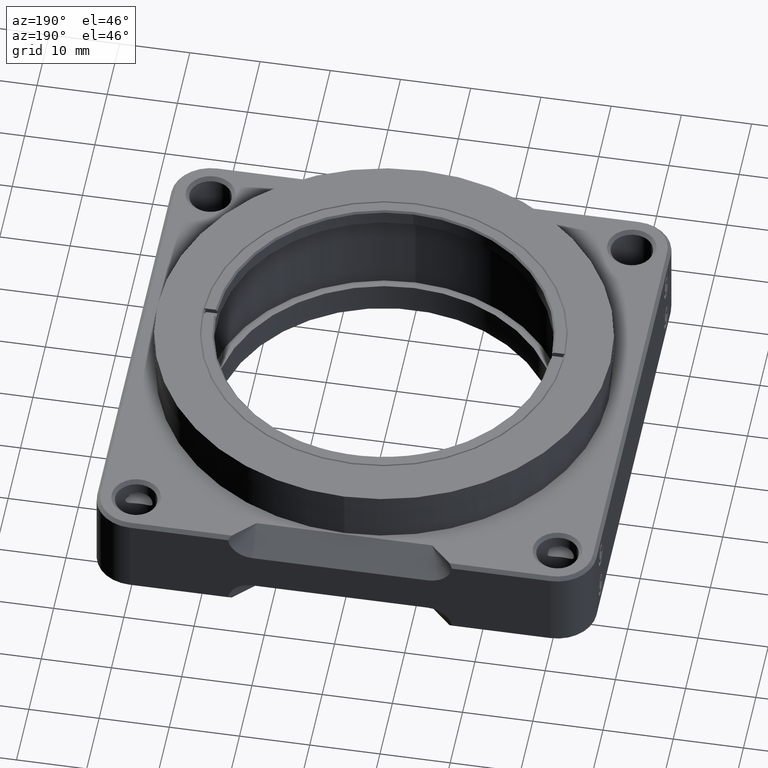
[diagram: clean part render]
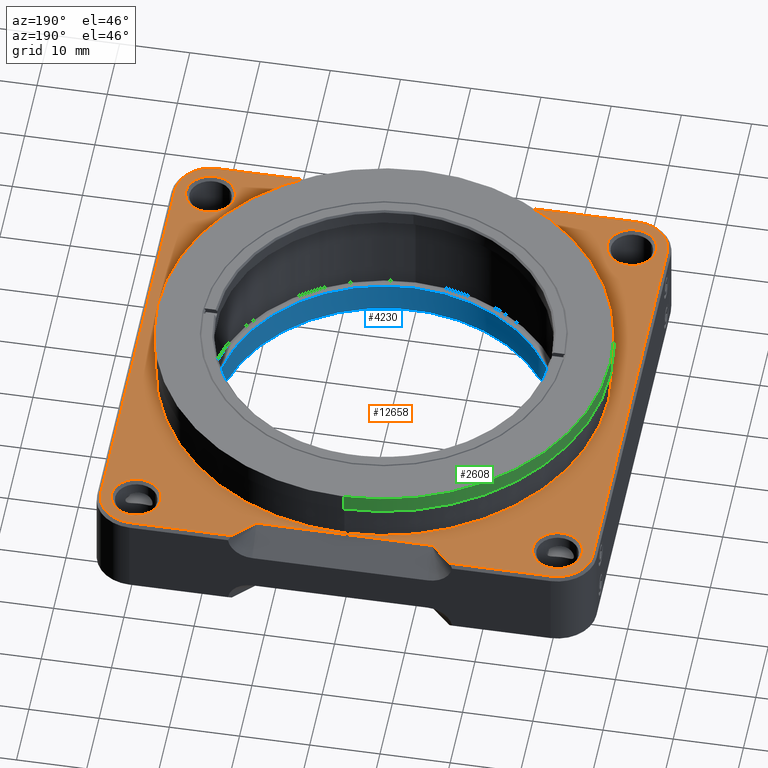
[diagram: same view with three faces highlighted in distinct colors, each labeled with its STEP entity id]
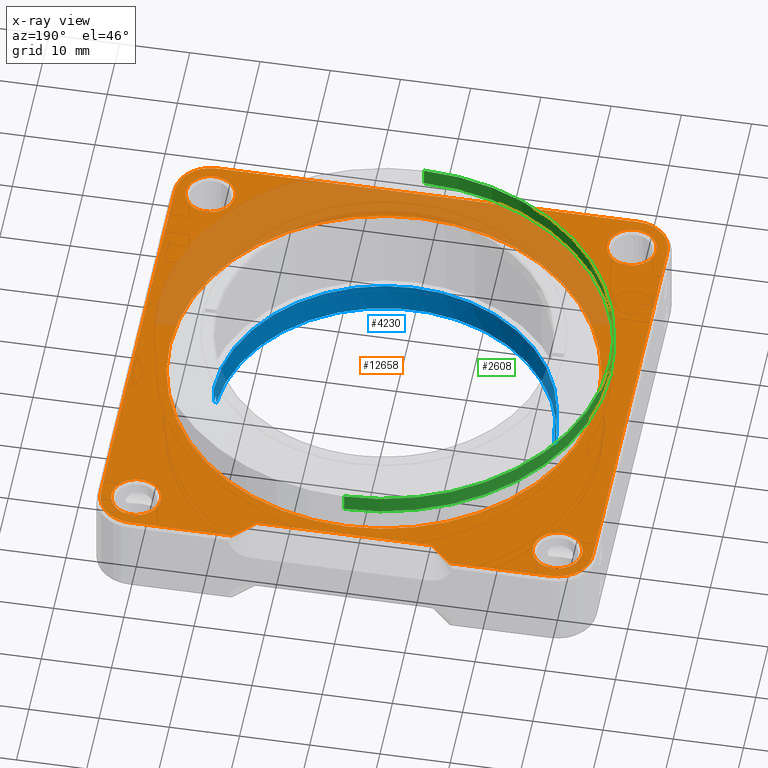
[diagram: x-ray of the same camera — body ghosted, the three highlighted faces saturated]
A machine part, auxiliary view with three faces highlighted in distinct colors.
The next image is the same camera in x-ray (body ghosted, the three faces saturated) — at least one of them is partly hidden behind the body in this view.
Their STEP definitions:

[orange] entity #12658 — the highlighted planar face has unit normal (-0, 0, 1).
#158 = VERTEX_POINT ( 'NONE', #10369 ) ;
#249 = EDGE_CURVE ( 'NONE', #11199, #7894, #5330, .T. ) ;
#294 = CARTESIAN_POINT ( 'NONE',  ( 12.50000000000000000, 32.05000000000000426, 6.250000000000000000 ) ) ;
#390 = VERTEX_POINT ( 'NONE', #4362 ) ;
#409 = CIRCLE ( 'NONE', #9389, 5.049999999999984723 ) ;
#410 = ORIENTED_EDGE ( 'NONE', *, *, #8733, .T. ) ;
#545 = CARTESIAN_POINT ( 'NONE',  ( 0.000000000000000000, 0.000000000000000000, 6.250000000000000000 ) ) ;
#592 = CARTESIAN_POINT ( 'NONE',  ( -15.49999999999998579, 35.04999999999997584, 6.250000000000000000 ) ) ;
#614 = VECTOR ( 'NONE', #3487, 999.9999999999998863 ) ;
#637 = VERTEX_POINT ( 'NONE', #11456 ) ;
#709 = LINE ( 'NONE', #4547, #2231 ) ;
#714 = DIRECTION ( 'NONE',  ( 1.000000000000000000, 0.000000000000000000, 0.000000000000000000 ) ) ;
#751 = LINE ( 'NONE', #8212, #8926 ) ;
#757 = ORIENTED_EDGE ( 'NONE', *, *, #2247, .F. ) ;
#783 = ORIENTED_EDGE ( 'NONE', *, *, #249, .T. ) ;
#924 = CARTESIAN_POINT ( 'NONE',  ( 30.00000000000001421, -30.00000000000000711, 6.250000000000000000 ) ) ;
#1022 = DIRECTION ( 'NONE',  ( -0.000000000000000000, 0.000000000000000000, 1.000000000000000000 ) ) ;
#1083 = VERTEX_POINT ( 'NONE', #2666 ) ;
#1103 = ORIENTED_EDGE ( 'NONE', *, *, #6084, .F. ) ;
#1158 = CIRCLE ( 'NONE', #12446, 3.500000000000016875 ) ;
#1278 = CARTESIAN_POINT ( 'NONE',  ( 30.00000000000000000, 30.00000000000000000, 6.250000000000000000 ) ) ;
#1314 = CIRCLE ( 'NONE', #12724, 3.500000000000016875 ) ;
#1410 = CARTESIAN_POINT ( 'NONE',  ( 12.50000000000000000, 32.05000000000000426, 6.249999999999998224 ) ) ;
#1416 = DIRECTION ( 'NONE',  ( 0.000000000000000000, -0.000000000000000000, -1.000000000000000000 ) ) ;
#1497 = DIRECTION ( 'NONE',  ( 1.000000000000000000, 0.000000000000000000, 0.000000000000000000 ) ) ;
#1568 = CARTESIAN_POINT ( 'NONE',  ( 0.000000000000000000, 0.000000000000000000, 6.250000000000000000 ) ) ;
#1605 = CARTESIAN_POINT ( 'NONE',  ( -30.00000000000000000, 35.04999999999997584, 6.250000000000000000 ) ) ;
#1807 = LINE ( 'NONE', #294, #614 ) ;
#1832 = EDGE_LOOP ( 'NONE', ( #14070, #2841 ) ) ;
#1865 = ORIENTED_EDGE ( 'NONE', *, *, #5634, .T. ) ;
#2031 = CARTESIAN_POINT ( 'NONE',  ( 35.04999999999998295, 29.99999999999999289, 6.250000000000000000 ) ) ;
#2174 = AXIS2_PLACEMENT_3D ( 'NONE', #545, #6174, #13715 ) ;
#2183 = CARTESIAN_POINT ( 'NONE',  ( -30.00000000000000000, -30.00000000000000000, 6.250000000000000000 ) ) ;
#2231 = VECTOR ( 'NONE', #12212, 1000.000000000000000 ) ;
#2247 = EDGE_CURVE ( 'NONE', #8692, #390, #9299, .T. ) ;
#2265 = FACE_BOUND ( 'NONE', #11708, .T. ) ;
#2531 = EDGE_CURVE ( 'NONE', #5575, #3912, #13265, .T. ) ;
#2657 = ORIENTED_EDGE ( 'NONE', *, *, #10484, .T. ) ;
#2666 = CARTESIAN_POINT ( 'NONE',  ( -26.49999999999998224, -30.00000000000000000, 6.250000000000000000 ) ) ;
#2783 = AXIS2_PLACEMENT_3D ( 'NONE', #1568, #3772, #7037 ) ;
#2834 = ORIENTED_EDGE ( 'NONE', *, *, #11577, .T. ) ;
#2840 = DIRECTION ( 'NONE',  ( 1.000000000000000000, 0.000000000000000000, 0.000000000000000000 ) ) ;
#2841 = ORIENTED_EDGE ( 'NONE', *, *, #2969, .T. ) ;
#2865 = ORIENTED_EDGE ( 'NONE', *, *, #5759, .T. ) ;
#2898 = CARTESIAN_POINT ( 'NONE',  ( -30.00000000000000000, -30.00000000000000000, 6.250000000000000000 ) ) ;
#2969 = EDGE_CURVE ( 'NONE', #9735, #9041, #4139, .T. ) ;
#2992 = VERTEX_POINT ( 'NONE', #1410 ) ;
#3064 = CARTESIAN_POINT ( 'NONE',  ( -35.04999999999999005, 29.99999999999999289, 6.250000000000000000 ) ) ;
#3180 = EDGE_LOOP ( 'NONE', ( #757, #11035, #7500, #12325, #1865, #12451, #2657, #13791, #12457, #6222, #1103, #2834 ) ) ;
#3252 = CARTESIAN_POINT ( 'NONE',  ( 30.00000000000000711, -35.04999999999999005, 6.250000000000000000 ) ) ;
#3295 = VECTOR ( 'NONE', #9614, 999.9999999999998863 ) ;
#3412 = ORIENTED_EDGE ( 'NONE', *, *, #14061, .F. ) ;
#3487 = DIRECTION ( 'NONE',  ( 0.7071067811865487940, 0.7071067811865463515, 0.000000000000000000 ) ) ;
#3735 = DIRECTION ( 'NONE',  ( 1.000000000000000000, 0.000000000000000000, 0.000000000000000000 ) ) ;
#3772 = DIRECTION ( 'NONE',  ( 0.000000000000000000, 0.000000000000000000, 1.000000000000000000 ) ) ;
#3850 = CARTESIAN_POINT ( 'NONE',  ( -26.49999999999998224, 30.00000000000000000, 6.250000000000000000 ) ) ;
#3912 = VERTEX_POINT ( 'NONE', #9344 ) ;
#4121 = FACE_BOUND ( 'NONE', #12528, .T. ) ;
#4139 = CIRCLE ( 'NONE', #13343, 3.500000000000016875 ) ;
#4167 = DIRECTION ( 'NONE',  ( 1.000000000000000000, 0.000000000000000000, 0.000000000000000000 ) ) ;
#4212 = CIRCLE ( 'NONE', #13161, 3.500000000000016875 ) ;
#4362 = CARTESIAN_POINT ( 'NONE',  ( -12.50000000000000178, 32.05000000000000426, 6.250000000000000000 ) ) ;
#4380 = DIRECTION ( 'NONE',  ( 1.000000000000000000, 0.000000000000000000, 0.000000000000000000 ) ) ;
#4543 = EDGE_CURVE ( 'NONE', #7894, #11199, #1314, .T. ) ;
#4547 = CARTESIAN_POINT ( 'NONE',  ( -35.04999999999998295, -30.00000000000000711, 6.250000000000000000 ) ) ;
#4628 = AXIS2_PLACEMENT_3D ( 'NONE', #11068, #1416, #13456 ) ;
#4716 = LINE ( 'NONE', #13798, #13632 ) ;
#4740 = CIRCLE ( 'NONE', #11336, 5.049999999999984723 ) ;
#4803 = ORIENTED_EDGE ( 'NONE', *, *, #12663, .F. ) ;
#4811 = FACE_OUTER_BOUND ( 'NONE', #3180, .T. ) ;
#4884 = CIRCLE ( 'NONE', #6393, 5.049999999999984723 ) ;
#5140 = CARTESIAN_POINT ( 'NONE',  ( 30.50000000000000000, 0.000000000000000000, 6.250000000000000000 ) ) ;
#5152 = ORIENTED_EDGE ( 'NONE', *, *, #13908, .T. ) ;
#5167 = FACE_BOUND ( 'NONE', #1832, .T. ) ;
#5201 = LINE ( 'NONE', #8413, #11343 ) ;
#5253 = DIRECTION ( 'NONE',  ( 1.000000000000000000, 0.000000000000000000, 0.000000000000000000 ) ) ;
#5330 = CIRCLE ( 'NONE', #14057, 3.500000000000016875 ) ;
#5400 = CARTESIAN_POINT ( 'NONE',  ( 33.50000000000001421, 30.00000000000000000, 6.250000000000000000 ) ) ;
#5428 = DIRECTION ( 'NONE',  ( 1.000000000000000000, 0.000000000000000000, 0.000000000000000000 ) ) ;
#5500 = DIRECTION ( 'NONE',  ( 0.000000000000000000, -0.000000000000000000, -1.000000000000000000 ) ) ;
#5575 = VERTEX_POINT ( 'NONE', #13087 ) ;
#5634 = EDGE_CURVE ( 'NONE', #8944, #6975, #4740, .T. ) ;
#5759 = EDGE_CURVE ( 'NONE', #637, #6025, #12615, .T. ) ;
#5929 = DIRECTION ( 'NONE',  ( -1.000000000000000000, 0.000000000000000000, -0.000000000000000000 ) ) ;
#6025 = VERTEX_POINT ( 'NONE', #5400 ) ;
#6029 = CIRCLE ( 'NONE', #14219, 30.50000000000000000 ) ;
#6078 = CARTESIAN_POINT ( 'NONE',  ( 0.000000000000000000, 0.000000000000000000, 6.250000000000000000 ) ) ;
#6084 = EDGE_CURVE ( 'NONE', #2992, #3912, #1807, .T. ) ;
#6174 = DIRECTION ( 'NONE',  ( -0.000000000000000000, 0.000000000000000000, 1.000000000000000000 ) ) ;
#6203 = FACE_BOUND ( 'NONE', #10832, .T. ) ;
#6222 = ORIENTED_EDGE ( 'NONE', *, *, #2531, .T. ) ;
#6293 = EDGE_CURVE ( 'NONE', #6975, #11579, #5201, .T. ) ;
#6328 = VERTEX_POINT ( 'NONE', #8667 ) ;
#6393 = AXIS2_PLACEMENT_3D ( 'NONE', #11828, #11967, #4167 ) ;
#6787 = CARTESIAN_POINT ( 'NONE',  ( 26.49999999999998224, -30.00000000000000000, 6.250000000000000000 ) ) ;
#6924 = CIRCLE ( 'NONE', #4628, 3.500000000000016875 ) ;
#6975 = VERTEX_POINT ( 'NONE', #12466 ) ;
#7008 = DIRECTION ( 'NONE',  ( 0.000000000000000000, -0.000000000000000000, -1.000000000000000000 ) ) ;
#7037 = DIRECTION ( 'NONE',  ( 1.000000000000000000, 0.000000000000000000, 0.000000000000000000 ) ) ;
#7357 = CARTESIAN_POINT ( 'NONE',  ( -33.50000000000001421, 30.00000000000000000, 6.250000000000000000 ) ) ;
#7500 = ORIENTED_EDGE ( 'NONE', *, *, #11605, .T. ) ;
#7612 = VERTEX_POINT ( 'NONE', #1605 ) ;
#7778 = CARTESIAN_POINT ( 'NONE',  ( -35.04999999999997584, -30.00000000000000711, 6.250000000000000000 ) ) ;
#7894 = VERTEX_POINT ( 'NONE', #7357 ) ;
#7981 = DIRECTION ( 'NONE',  ( 1.000000000000000000, 0.000000000000000000, 0.000000000000000000 ) ) ;
#8049 = CARTESIAN_POINT ( 'NONE',  ( 30.00000000000000000, -30.00000000000000000, 6.250000000000000000 ) ) ;
#8077 = EDGE_CURVE ( 'NONE', #8196, #5575, #4884, .T. ) ;
#8196 = VERTEX_POINT ( 'NONE', #2031 ) ;
#8212 = CARTESIAN_POINT ( 'NONE',  ( 35.04999999999998295, 29.99999999999999289, 6.250000000000000000 ) ) ;
#8282 = DIRECTION ( 'NONE',  ( 1.000000000000000000, 0.000000000000000000, 0.000000000000000000 ) ) ;
#8413 = CARTESIAN_POINT ( 'NONE',  ( 30.00000000000000711, -35.04999999999999005, 6.250000000000000000 ) ) ;
#8450 = VERTEX_POINT ( 'NONE', #3064 ) ;
#8532 = CARTESIAN_POINT ( 'NONE',  ( -12.50000000000000000, 32.05000000000000426, 6.250000000000000000 ) ) ;
#8667 = CARTESIAN_POINT ( 'NONE',  ( -33.50000000000001421, -30.00000000000000000, 6.250000000000000000 ) ) ;
#8692 = VERTEX_POINT ( 'NONE', #592 ) ;
#8733 = EDGE_CURVE ( 'NONE', #6025, #637, #6924, .T. ) ;
#8741 = CARTESIAN_POINT ( 'NONE',  ( -12.50000000000000178, 32.05000000000000426, 6.249999999999998224 ) ) ;
#8926 = VECTOR ( 'NONE', #11591, 1000.000000000000000 ) ;
#8944 = VERTEX_POINT ( 'NONE', #7778 ) ;
#9041 = VERTEX_POINT ( 'NONE', #12401 ) ;
#9078 = DIRECTION ( 'NONE',  ( 1.000000000000000000, 0.000000000000000000, 0.000000000000000000 ) ) ;
#9245 = CARTESIAN_POINT ( 'NONE',  ( -30.00000000000000000, 30.00000000000000000, 6.250000000000000000 ) ) ;
#9299 = LINE ( 'NONE', #8532, #3295 ) ;
#9344 = CARTESIAN_POINT ( 'NONE',  ( 15.49999999999998579, 35.04999999999997584, 6.250000000000000000 ) ) ;
#9361 = EDGE_CURVE ( 'NONE', #8450, #8944, #709, .T. ) ;
#9389 = AXIS2_PLACEMENT_3D ( 'NONE', #924, #1022, #9710 ) ;
#9489 = EDGE_CURVE ( 'NONE', #9041, #9735, #14234, .T. ) ;
#9524 = DIRECTION ( 'NONE',  ( 1.000000000000000000, 0.000000000000000000, 0.000000000000000000 ) ) ;
#9614 = DIRECTION ( 'NONE',  ( 0.7071067811865487940, -0.7071067811865463515, 0.000000000000000000 ) ) ;
#9710 = DIRECTION ( 'NONE',  ( 1.000000000000000000, 0.000000000000000000, 0.000000000000000000 ) ) ;
#9735 = VERTEX_POINT ( 'NONE', #6787 ) ;
#9809 = AXIS2_PLACEMENT_3D ( 'NONE', #11682, #13916, #9524 ) ;
#10204 = CIRCLE ( 'NONE', #2783, 30.50000000000000000 ) ;
#10295 = DIRECTION ( 'NONE',  ( 0.000000000000000000, -0.000000000000000000, -1.000000000000000000 ) ) ;
#10312 = VECTOR ( 'NONE', #5929, 1000.000000000000000 ) ;
#10369 = CARTESIAN_POINT ( 'NONE',  ( 35.04999999999999716, -30.00000000000000711, 6.250000000000000000 ) ) ;
#10440 = DIRECTION ( 'NONE',  ( 0.000000000000000000, -0.000000000000000000, -1.000000000000000000 ) ) ;
#10484 = EDGE_CURVE ( 'NONE', #11579, #158, #409, .T. ) ;
#10591 = DIRECTION ( 'NONE',  ( 0.000000000000000000, -0.000000000000000000, -1.000000000000000000 ) ) ;
#10653 = LINE ( 'NONE', #8741, #12241 ) ;
#10782 = AXIS2_PLACEMENT_3D ( 'NONE', #1278, #10967, #5428 ) ;
#10832 = EDGE_LOOP ( 'NONE', ( #4803, #3412 ) ) ;
#10847 = EDGE_LOOP ( 'NONE', ( #5152, #12867 ) ) ;
#10905 = DIRECTION ( 'NONE',  ( -1.000000000000000000, 0.000000000000000000, 0.000000000000000000 ) ) ;
#10951 = VERTEX_POINT ( 'NONE', #11478 ) ;
#10967 = DIRECTION ( 'NONE',  ( 0.000000000000000000, -0.000000000000000000, -1.000000000000000000 ) ) ;
#11035 = ORIENTED_EDGE ( 'NONE', *, *, #14199, .T. ) ;
#11068 = CARTESIAN_POINT ( 'NONE',  ( 30.00000000000000000, 30.00000000000000000, 6.250000000000000000 ) ) ;
#11199 = VERTEX_POINT ( 'NONE', #3850 ) ;
#11203 = EDGE_CURVE ( 'NONE', #6328, #1083, #1158, .T. ) ;
#11282 = DIRECTION ( 'NONE',  ( -0.000000000000000000, 0.000000000000000000, 1.000000000000000000 ) ) ;
#11332 = CARTESIAN_POINT ( 'NONE',  ( 16.00000000000000000, 35.04999999999997584, 6.250000000000000000 ) ) ;
#11336 = AXIS2_PLACEMENT_3D ( 'NONE', #11418, #11282, #9078 ) ;
#11343 = VECTOR ( 'NONE', #8282, 1000.000000000000000 ) ;
#11418 = CARTESIAN_POINT ( 'NONE',  ( -29.99999999999999289, -30.00000000000000711, 6.250000000000000000 ) ) ;
#11448 = DIRECTION ( 'NONE',  ( 0.000000000000000000, 0.000000000000000000, 1.000000000000000000 ) ) ;
#11456 = CARTESIAN_POINT ( 'NONE',  ( 26.49999999999998224, 30.00000000000000000, 6.250000000000000000 ) ) ;
#11478 = CARTESIAN_POINT ( 'NONE',  ( -30.50000000000000000, 3.735172737399427541E-15, 6.250000000000000000 ) ) ;
#11577 = EDGE_CURVE ( 'NONE', #2992, #390, #10653, .T. ) ;
#11579 = VERTEX_POINT ( 'NONE', #3252 ) ;
#11591 = DIRECTION ( 'NONE',  ( -1.951868889987968594E-16, 1.000000000000000000, 0.000000000000000000 ) ) ;
#11605 = EDGE_CURVE ( 'NONE', #7612, #8450, #11875, .T. ) ;
#11656 = FACE_BOUND ( 'NONE', #10847, .T. ) ;
#11682 = CARTESIAN_POINT ( 'NONE',  ( 30.00000000000000000, -30.00000000000000000, 6.250000000000000000 ) ) ;
#11708 = EDGE_LOOP ( 'NONE', ( #783, #12972 ) ) ;
#11828 = CARTESIAN_POINT ( 'NONE',  ( 30.00000000000000000, 29.99999999999999289, 6.250000000000000000 ) ) ;
#11875 = CIRCLE ( 'NONE', #12354, 5.049999999999984723 ) ;
#11967 = DIRECTION ( 'NONE',  ( -0.000000000000000000, 0.000000000000000000, 1.000000000000000000 ) ) ;
#12167 = VERTEX_POINT ( 'NONE', #5140 ) ;
#12176 = DIRECTION ( 'NONE',  ( -0.000000000000000000, 0.000000000000000000, 1.000000000000000000 ) ) ;
#12212 = DIRECTION ( 'NONE',  ( 9.759344449939842972E-17, -1.000000000000000000, 0.000000000000000000 ) ) ;
#12241 = VECTOR ( 'NONE', #10905, 1000.000000000000000 ) ;
#12269 = CARTESIAN_POINT ( 'NONE',  ( -30.00000000000000000, 29.99999999999999289, 6.250000000000000000 ) ) ;
#12325 = ORIENTED_EDGE ( 'NONE', *, *, #9361, .T. ) ;
#12354 = AXIS2_PLACEMENT_3D ( 'NONE', #12269, #12176, #7981 ) ;
#12401 = CARTESIAN_POINT ( 'NONE',  ( 33.50000000000001421, -30.00000000000000000, 6.250000000000000000 ) ) ;
#12446 = AXIS2_PLACEMENT_3D ( 'NONE', #2898, #10440, #5253 ) ;
#12451 = ORIENTED_EDGE ( 'NONE', *, *, #6293, .T. ) ;
#12457 = ORIENTED_EDGE ( 'NONE', *, *, #8077, .T. ) ;
#12466 = CARTESIAN_POINT ( 'NONE',  ( -29.99999999999999289, -35.04999999999999005, 6.250000000000000000 ) ) ;
#12528 = EDGE_LOOP ( 'NONE', ( #410, #2865 ) ) ;
#12615 = CIRCLE ( 'NONE', #10782, 3.500000000000016875 ) ;
#12645 = EDGE_CURVE ( 'NONE', #158, #8196, #751, .T. ) ;
#12658 = ADVANCED_FACE ( 'NONE', ( #5167, #11656, #4121, #2265, #6203, #4811 ), #12708, .T. ) ;
#12663 = EDGE_CURVE ( 'NONE', #12167, #10951, #6029, .T. ) ;
#12708 = PLANE ( 'NONE',  #2174 ) ;
#12724 = AXIS2_PLACEMENT_3D ( 'NONE', #9245, #10295, #3735 ) ;
#12781 = DIRECTION ( 'NONE',  ( -1.000000000000000000, 0.000000000000000000, -0.000000000000000000 ) ) ;
#12867 = ORIENTED_EDGE ( 'NONE', *, *, #11203, .T. ) ;
#12972 = ORIENTED_EDGE ( 'NONE', *, *, #4543, .T. ) ;
#13087 = CARTESIAN_POINT ( 'NONE',  ( 30.00000000000000000, 35.04999999999997584, 6.250000000000000000 ) ) ;
#13161 = AXIS2_PLACEMENT_3D ( 'NONE', #2183, #5500, #4380 ) ;
#13265 = LINE ( 'NONE', #11332, #10312 ) ;
#13343 = AXIS2_PLACEMENT_3D ( 'NONE', #8049, #7008, #1497 ) ;
#13456 = DIRECTION ( 'NONE',  ( 1.000000000000000000, 0.000000000000000000, 0.000000000000000000 ) ) ;
#13632 = VECTOR ( 'NONE', #12781, 1000.000000000000000 ) ;
#13715 = DIRECTION ( 'NONE',  ( 1.000000000000000000, 0.000000000000000000, 0.000000000000000000 ) ) ;
#13791 = ORIENTED_EDGE ( 'NONE', *, *, #12645, .T. ) ;
#13798 = CARTESIAN_POINT ( 'NONE',  ( -30.00000000000000000, 35.04999999999997584, 6.250000000000000000 ) ) ;
#13907 = CARTESIAN_POINT ( 'NONE',  ( -30.00000000000000000, 30.00000000000000000, 6.250000000000000000 ) ) ;
#13908 = EDGE_CURVE ( 'NONE', #1083, #6328, #4212, .T. ) ;
#13916 = DIRECTION ( 'NONE',  ( 0.000000000000000000, -0.000000000000000000, -1.000000000000000000 ) ) ;
#14057 = AXIS2_PLACEMENT_3D ( 'NONE', #13907, #10591, #714 ) ;
#14061 = EDGE_CURVE ( 'NONE', #10951, #12167, #10204, .T. ) ;
#14070 = ORIENTED_EDGE ( 'NONE', *, *, #9489, .T. ) ;
#14199 = EDGE_CURVE ( 'NONE', #8692, #7612, #4716, .T. ) ;
#14219 = AXIS2_PLACEMENT_3D ( 'NONE', #6078, #11448, #2840 ) ;
#14234 = CIRCLE ( 'NONE', #9809, 3.500000000000016875 ) ;

[blue] entity #4230 — the highlighted cylindrical surface (partial cylindrical patch) has radius 24.25 mm, axis along (0, 0, -1).
#252 = AXIS2_PLACEMENT_3D ( 'NONE', #12806, #1791, #11754 ) ;
#395 = ORIENTED_EDGE ( 'NONE', *, *, #11053, .T. ) ;
#650 = EDGE_CURVE ( 'NONE', #13207, #12754, #12650, .T. ) ;
#943 = VERTEX_POINT ( 'NONE', #1679 ) ;
#1131 = ORIENTED_EDGE ( 'NONE', *, *, #650, .T. ) ;
#1217 = VERTEX_POINT ( 'NONE', #4397 ) ;
#1290 = DIRECTION ( 'NONE',  ( 0.000000000000000000, 0.000000000000000000, -1.000000000000000000 ) ) ;
#1376 = EDGE_LOOP ( 'NONE', ( #10492, #395, #3906, #13351, #3479, #7270, #1131, #9428 ) ) ;
#1679 = CARTESIAN_POINT ( 'NONE',  ( -24.25000000000000000, -1.770181866452735440E-15, -1.450000000000000400 ) ) ;
#1791 = DIRECTION ( 'NONE',  ( 0.000000000000000000, 0.000000000000000000, -1.000000000000000000 ) ) ;
#2096 = DIRECTION ( 'NONE',  ( 0.000000000000000000, 0.000000000000000000, -1.000000000000000000 ) ) ;
#2135 = EDGE_CURVE ( 'NONE', #3052, #11509, #13964, .T. ) ;
#2175 = CARTESIAN_POINT ( 'NONE',  ( 24.25000000000018829, 5.265139128006213185E-16, -1.450000000000000400 ) ) ;
#2340 = EDGE_CURVE ( 'NONE', #943, #8131, #5395, .T. ) ;
#2799 = AXIS2_PLACEMENT_3D ( 'NONE', #2995, #10629, #12870 ) ;
#2995 = CARTESIAN_POINT ( 'NONE',  ( -1.379547243124282587E-16, -2.106718220792233255E-15, -4.372000000000000774 ) ) ;
#3052 = VERTEX_POINT ( 'NONE', #8297 ) ;
#3195 = CARTESIAN_POINT ( 'NONE',  ( -1.379547243124282587E-16, -2.106718220792233255E-15, -1.450000000000000400 ) ) ;
#3210 = LINE ( 'NONE', #10222, #10749 ) ;
#3479 = ORIENTED_EDGE ( 'NONE', *, *, #2135, .T. ) ;
#3803 = CARTESIAN_POINT ( 'NONE',  ( -24.19715892413830360, -1.600000000000001643, -4.372000000000000774 ) ) ;
#3906 = ORIENTED_EDGE ( 'NONE', *, *, #11861, .T. ) ;
#4175 = CARTESIAN_POINT ( 'NONE',  ( -24.19715892413830360, -1.600000000000001643, -1.450000000000000400 ) ) ;
#4230 = ADVANCED_FACE ( 'NONE', ( #11748 ), #4736, .F. ) ;
#4303 = DIRECTION ( 'NONE',  ( 0.000000000000000000, 0.000000000000000000, -1.000000000000000000 ) ) ;
#4383 = DIRECTION ( 'NONE',  ( 1.000000000000000000, -1.387778780781434428E-17, 0.000000000000000000 ) ) ;
#4397 = CARTESIAN_POINT ( 'NONE',  ( 24.19715892413830360, -1.600000000000021627, -4.372000000000000774 ) ) ;
#4443 = CARTESIAN_POINT ( 'NONE',  ( -24.19715892413830360, -1.600000000000001643, -5.900000000000000355 ) ) ;
#4736 = CYLINDRICAL_SURFACE ( 'NONE', #13458, 24.25000000000018829 ) ;
#4963 = LINE ( 'NONE', #2175, #6362 ) ;
#5048 = DIRECTION ( 'NONE',  ( 1.000000000000000000, -1.387778780781434428E-17, 0.000000000000000000 ) ) ;
#5168 = DIRECTION ( 'NONE',  ( -1.000000000000000000, 1.387778780781434428E-17, 0.000000000000000000 ) ) ;
#5294 = CARTESIAN_POINT ( 'NONE',  ( 24.25000000000000000, 5.265139128006008081E-16, -1.450000000000000400 ) ) ;
#5395 = CIRCLE ( 'NONE', #13989, 24.25000000000018829 ) ;
#5451 = DIRECTION ( 'NONE',  ( 0.000000000000000000, 0.000000000000000000, 1.000000000000000000 ) ) ;
#5540 = EDGE_CURVE ( 'NONE', #13207, #11509, #12983, .T. ) ;
#5780 = EDGE_CURVE ( 'NONE', #943, #12754, #10866, .T. ) ;
#6362 = VECTOR ( 'NONE', #1290, 1000.000000000000000 ) ;
#6451 = AXIS2_PLACEMENT_3D ( 'NONE', #7191, #8343, #5048 ) ;
#6537 = DIRECTION ( 'NONE',  ( 0.000000000000000000, 0.000000000000000000, -1.000000000000000000 ) ) ;
#7183 = VECTOR ( 'NONE', #2096, 1000.000000000000000 ) ;
#7191 = CARTESIAN_POINT ( 'NONE',  ( -1.379547243124282587E-16, -2.106718220792233255E-15, -5.900000000000000355 ) ) ;
#7270 = ORIENTED_EDGE ( 'NONE', *, *, #5540, .F. ) ;
#7606 = EDGE_CURVE ( 'NONE', #3052, #1217, #3210, .T. ) ;
#8131 = VERTEX_POINT ( 'NONE', #5294 ) ;
#8297 = CARTESIAN_POINT ( 'NONE',  ( 24.19715892413830360, -1.600000000000021627, -5.900000000000000355 ) ) ;
#8343 = DIRECTION ( 'NONE',  ( -0.000000000000000000, -0.000000000000000000, -1.000000000000000000 ) ) ;
#9428 = ORIENTED_EDGE ( 'NONE', *, *, #5780, .F. ) ;
#9932 = CARTESIAN_POINT ( 'NONE',  ( 24.25000000000000000, 5.265139128006008081E-16, -4.372000000000000774 ) ) ;
#9979 = CARTESIAN_POINT ( 'NONE',  ( -24.25000000000018829, -1.770181866452732679E-15, -1.450000000000000400 ) ) ;
#10222 = CARTESIAN_POINT ( 'NONE',  ( 24.19715892413830360, -1.600000000000021627, -1.450000000000000400 ) ) ;
#10361 = DIRECTION ( 'NONE',  ( -0.000000000000000000, -0.000000000000000000, 1.000000000000000000 ) ) ;
#10492 = ORIENTED_EDGE ( 'NONE', *, *, #2340, .T. ) ;
#10561 = CARTESIAN_POINT ( 'NONE',  ( -24.25000000000000000, -1.770181866452735440E-15, -4.372000000000000774 ) ) ;
#10629 = DIRECTION ( 'NONE',  ( 0.000000000000000000, 0.000000000000000000, -1.000000000000000000 ) ) ;
#10749 = VECTOR ( 'NONE', #10361, 1000.000000000000000 ) ;
#10866 = LINE ( 'NONE', #9979, #13132 ) ;
#11053 = EDGE_CURVE ( 'NONE', #8131, #12956, #4963, .T. ) ;
#11509 = VERTEX_POINT ( 'NONE', #4443 ) ;
#11748 = FACE_OUTER_BOUND ( 'NONE', #1376, .T. ) ;
#11754 = DIRECTION ( 'NONE',  ( -1.000000000000000000, 1.387778780781434428E-17, 0.000000000000000000 ) ) ;
#11806 = CARTESIAN_POINT ( 'NONE',  ( -1.379547243124282587E-16, -2.106718220792233255E-15, -1.450000000000000400 ) ) ;
#11861 = EDGE_CURVE ( 'NONE', #12956, #1217, #13441, .T. ) ;
#12650 = CIRCLE ( 'NONE', #252, 24.25000000000018829 ) ;
#12754 = VERTEX_POINT ( 'NONE', #10561 ) ;
#12806 = CARTESIAN_POINT ( 'NONE',  ( -1.379547243124282587E-16, -2.106718220792233255E-15, -4.372000000000000774 ) ) ;
#12870 = DIRECTION ( 'NONE',  ( -1.000000000000000000, 1.387778780781434428E-17, 0.000000000000000000 ) ) ;
#12956 = VERTEX_POINT ( 'NONE', #9932 ) ;
#12983 = LINE ( 'NONE', #4175, #7183 ) ;
#13132 = VECTOR ( 'NONE', #6537, 1000.000000000000000 ) ;
#13207 = VERTEX_POINT ( 'NONE', #3803 ) ;
#13351 = ORIENTED_EDGE ( 'NONE', *, *, #7606, .F. ) ;
#13441 = CIRCLE ( 'NONE', #2799, 24.25000000000018829 ) ;
#13458 = AXIS2_PLACEMENT_3D ( 'NONE', #11806, #4303, #5168 ) ;
#13964 = CIRCLE ( 'NONE', #6451, 24.25000000000018829 ) ;
#13989 = AXIS2_PLACEMENT_3D ( 'NONE', #3195, #5451, #4383 ) ;

[green] entity #2608 — the highlighted cylindrical surface (partial cylindrical patch) has radius 32.25 mm, axis along (-0, -0, 1).
#22 = DIRECTION ( 'NONE',  ( -0.000000000000000000, -0.000000000000000000, 1.000000000000000000 ) ) ;
#73 = CYLINDRICAL_SURFACE ( 'NONE', #10176, 32.25000000000000000 ) ;
#222 = DIRECTION ( 'NONE',  ( 0.000000000000000000, -1.000000000000000000, 0.000000000000000000 ) ) ;
#424 = VERTEX_POINT ( 'NONE', #3376 ) ;
#511 = VECTOR ( 'NONE', #5611, 1000.000000000000000 ) ;
#591 = CARTESIAN_POINT ( 'NONE',  ( 4.335827842660973463E-15, 32.25000000000000000, -3.950000000000000178 ) ) ;
#1310 = EDGE_LOOP ( 'NONE', ( #11485, #3508, #8952, #11007 ) ) ;
#1528 = LINE ( 'NONE', #12139, #511 ) ;
#2608 = ADVANCED_FACE ( 'NONE', ( #11148 ), #73, .T. ) ;
#2708 = DIRECTION ( 'NONE',  ( -0.000000000000000000, -0.000000000000000000, 1.000000000000000000 ) ) ;
#2888 = CIRCLE ( 'NONE', #2993, 32.25000000000000000 ) ;
#2993 = AXIS2_PLACEMENT_3D ( 'NONE', #13280, #8821, #12113 ) ;
#3172 = DIRECTION ( 'NONE',  ( 0.000000000000000000, 1.000000000000000000, 0.000000000000000000 ) ) ;
#3376 = CARTESIAN_POINT ( 'NONE',  ( 3.863419154107597085E-16, -32.25000000000000000, 11.54999999999999538 ) ) ;
#3508 = ORIENTED_EDGE ( 'NONE', *, *, #7749, .T. ) ;
#4154 = VERTEX_POINT ( 'NONE', #8222 ) ;
#4414 = CARTESIAN_POINT ( 'NONE',  ( 3.863419154107597085E-16, 3.959807664569179072E-16, -3.950000000000000178 ) ) ;
#5053 = VERTEX_POINT ( 'NONE', #13802 ) ;
#5286 = CIRCLE ( 'NONE', #12588, 32.25000000000000000 ) ;
#5323 = EDGE_CURVE ( 'NONE', #4154, #5053, #2888, .T. ) ;
#5611 = DIRECTION ( 'NONE',  ( -0.000000000000000000, -0.000000000000000000, 1.000000000000000000 ) ) ;
#6194 = LINE ( 'NONE', #591, #10590 ) ;
#6484 = CARTESIAN_POINT ( 'NONE',  ( 4.335827842660973463E-15, 32.25000000000000000, 11.54999999999999538 ) ) ;
#7749 = EDGE_CURVE ( 'NONE', #8987, #424, #5286, .T. ) ;
#8222 = CARTESIAN_POINT ( 'NONE',  ( 3.863419154107597085E-16, -32.25000000000000000, 14.04999999999999893 ) ) ;
#8821 = DIRECTION ( 'NONE',  ( 0.000000000000000000, 0.000000000000000000, -1.000000000000000000 ) ) ;
#8952 = ORIENTED_EDGE ( 'NONE', *, *, #13463, .T. ) ;
#8987 = VERTEX_POINT ( 'NONE', #6484 ) ;
#9729 = DIRECTION ( 'NONE',  ( -0.000000000000000000, -0.000000000000000000, 1.000000000000000000 ) ) ;
#10176 = AXIS2_PLACEMENT_3D ( 'NONE', #4414, #22, #222 ) ;
#10590 = VECTOR ( 'NONE', #2708, 1000.000000000000000 ) ;
#11007 = ORIENTED_EDGE ( 'NONE', *, *, #5323, .T. ) ;
#11148 = FACE_OUTER_BOUND ( 'NONE', #1310, .T. ) ;
#11485 = ORIENTED_EDGE ( 'NONE', *, *, #12733, .F. ) ;
#12113 = DIRECTION ( 'NONE',  ( 0.000000000000000000, 1.000000000000000000, 0.000000000000000000 ) ) ;
#12139 = CARTESIAN_POINT ( 'NONE',  ( 3.863419154107597085E-16, -32.25000000000000000, -3.950000000000000178 ) ) ;
#12588 = AXIS2_PLACEMENT_3D ( 'NONE', #14016, #9729, #3172 ) ;
#12733 = EDGE_CURVE ( 'NONE', #8987, #5053, #6194, .T. ) ;
#13280 = CARTESIAN_POINT ( 'NONE',  ( 3.863419154107597085E-16, 3.959807664569179072E-16, 14.04999999999999893 ) ) ;
#13463 = EDGE_CURVE ( 'NONE', #424, #4154, #1528, .T. ) ;
#13802 = CARTESIAN_POINT ( 'NONE',  ( 4.335827842660973463E-15, 32.25000000000000000, 14.04999999999999893 ) ) ;
#14016 = CARTESIAN_POINT ( 'NONE',  ( 3.863419154107597085E-16, 3.959807664569179072E-16, 11.54999999999999538 ) ) ;